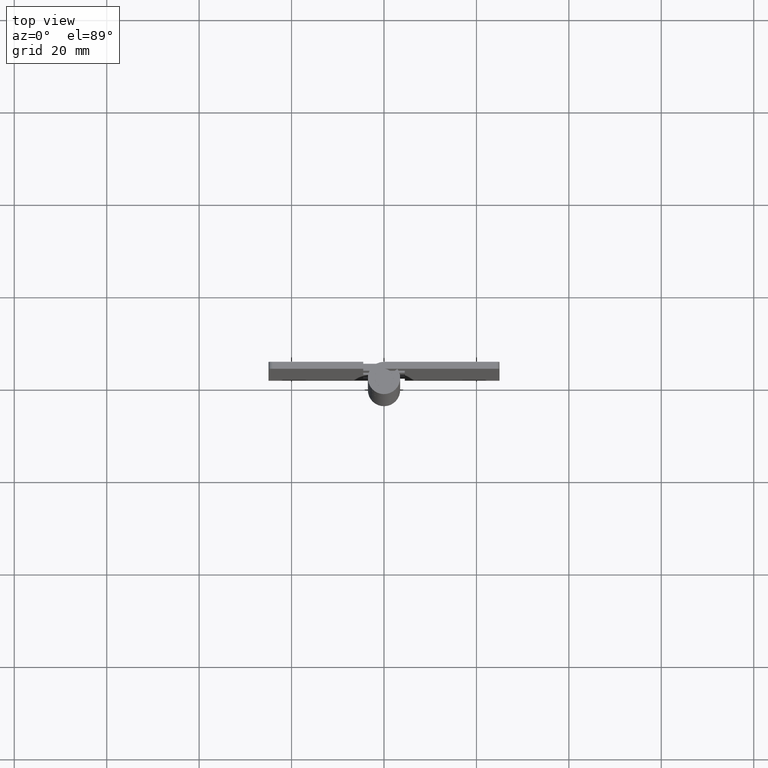
[diagram: clean part render]
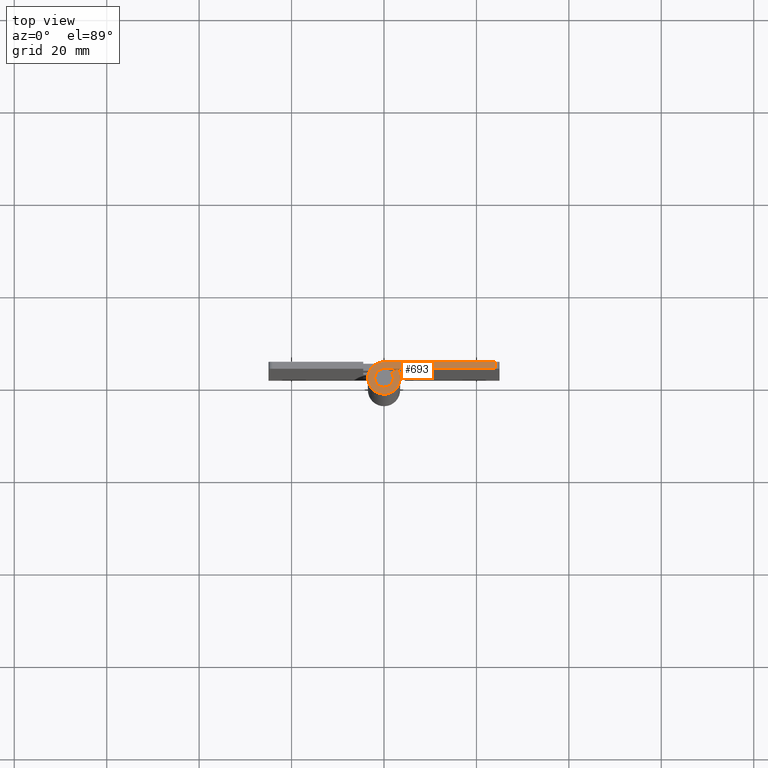
[diagram: same view with one face highlighted and labeled with its STEP entity id]
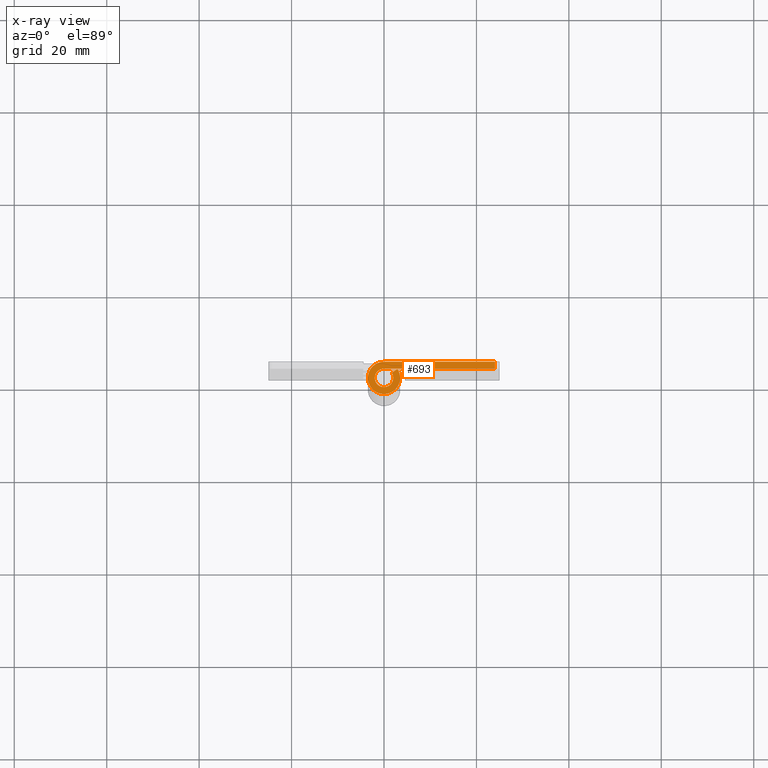
[diagram: x-ray of the same camera — body ghosted, the highlighted face saturated]
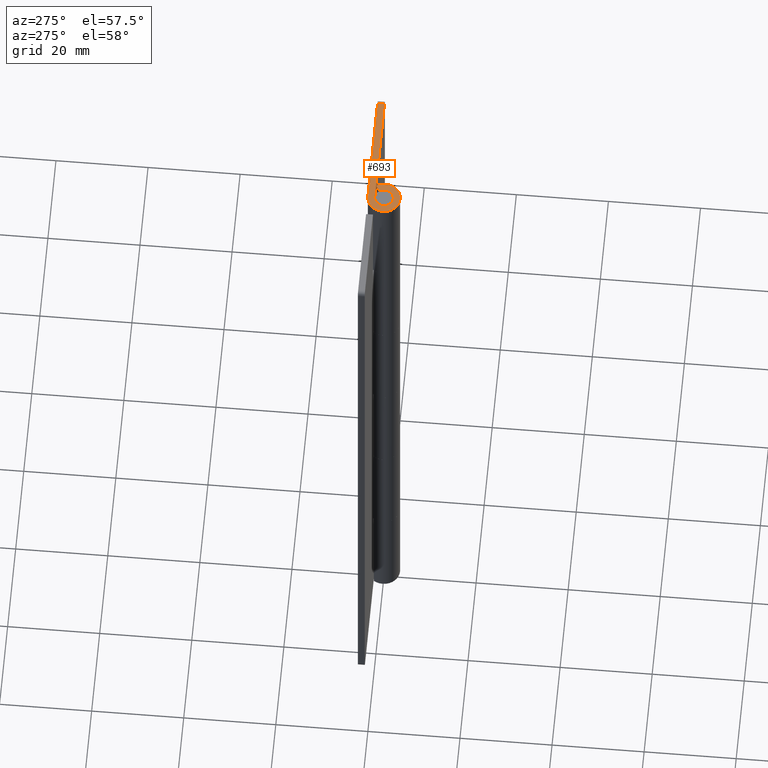
[diagram: same view with one face highlighted and labeled with its STEP entity id]
A machine part, top view. The second image highlights one B-rep face of the part: STEP entity #693.
The next image is the same camera in x-ray: the body ghosted, the highlighted face saturated — about 0% of this face is hidden behind the body in this view.
A second angle (auxiliary view) of the same face is appended — the face is thin or edge-on in the first view.
In plain terms, the highlighted face is a freeform B-spline surface patch.
Its self-contained STEP definition (entity closure, byte-faithful):
#60=CARTESIAN_POINT('',(24.0,2.0,150.000008000000010));
#61=VERTEX_POINT('',#60);
#82=CARTESIAN_POINT('',(24.0,3.500000000000000,150.000008000000010));
#83=VERTEX_POINT('',#82);
#97=CARTESIAN_POINT('',(24.0,2.0,150.000008000000010));
#98=CARTESIAN_POINT('',(24.0,3.500000000000000,150.000008000000010));
#99=QUASI_UNIFORM_CURVE('',1,(#97,#98),.UNSPECIFIED.,.F.,.U.);
#100=EDGE_CURVE('',#61,#83,#99,.T.);
#624=CARTESIAN_POINT('',(-4.872876216677774,3.849507296625907,150.000008000000010));
#625=CARTESIAN_POINT('',(25.373590064436399,3.849507296625907,150.000008000000010));
#626=CARTESIAN_POINT('',(-4.872876216677774,-3.846650831405569,150.000008000000010));
#627=CARTESIAN_POINT('',(25.373590064436399,-3.846650831405569,150.000008000000010));
#628=B_SPLINE_SURFACE_WITH_KNOTS('',1,1,((#624,#626),(#625,#627)),.UNSPECIFIED.,.F.,.F.,.U.,(2,2),(2,2),(0.0,30.246466281114170),(0.0,7.696158128031476),.UNSPECIFIED.);
#629=CARTESIAN_POINT('',(-2.449213E-016,2.0,150.000008000000010));
#630=VERTEX_POINT('',#629);
#631=CARTESIAN_POINT('',(-2.449213E-016,2.0,150.000008000000010));
#632=CARTESIAN_POINT('',(24.0,2.0,150.000008000000010));
#633=QUASI_UNIFORM_CURVE('',1,(#631,#632),.UNSPECIFIED.,.F.,.U.);
#634=EDGE_CURVE('',#630,#61,#633,.T.);
#635=ORIENTED_EDGE('',*,*,#634,.T.);
#636=ORIENTED_EDGE('',*,*,#100,.T.);
#637=CARTESIAN_POINT('',(0.0,3.500000000000000,150.000008000000010));
#638=VERTEX_POINT('',#637);
#639=CARTESIAN_POINT('',(24.0,3.500000000000000,150.000008000000010));
#640=CARTESIAN_POINT('',(0.0,3.500000000000000,150.000008000000010));
#641=QUASI_UNIFORM_CURVE('',1,(#639,#640),.UNSPECIFIED.,.F.,.U.);
#642=EDGE_CURVE('',#83,#638,#641,.T.);
#643=ORIENTED_EDGE('',*,*,#642,.T.);
#644=CARTESIAN_POINT('',(2.906458325866730,1.950000000000000,150.000008000000010));
#645=VERTEX_POINT('',#644);
#646=CARTESIAN_POINT('',(0.0,3.500000000000000,150.000008000000010));
#647=CARTESIAN_POINT('',(-2.732759340469791,3.500000000000001,150.000008000000040));
#648=CARTESIAN_POINT('',(-3.395511382448716,0.848824158269080,150.000008000000010));
#649=CARTESIAN_POINT('',(-4.058263424427640,-1.802351683461841,150.000008000000040));
#650=CARTESIAN_POINT('',(-1.646966909200063,-3.088284313336451,150.000008000000010));
#651=CARTESIAN_POINT('',(0.764329606027513,-4.374216943211058,150.000008000000040));
#652=CARTESIAN_POINT('',(2.596662639363702,-2.346772919848176,150.000008000000010));
#653=CARTESIAN_POINT('',(4.428995672699895,-0.319328896485289,150.000008000000040));
#654=CARTESIAN_POINT('',(2.906458325866727,1.949999999999996,150.000008000000010));
#662=(BOUNDED_CURVE()B_SPLINE_CURVE(2,(#646,#647,#648,#649,#650,#651,#652,#653,#654),.UNSPECIFIED.,.F.,.U.)B_SPLINE_CURVE_WITH_KNOTS((3,2,2,2,3),(0.0,0.250000000000000,0.500000000000000,0.750000000000000,1.0),.UNSPECIFIED.)CURVE()GEOMETRIC_REPRESENTATION_ITEM()RATIONAL_B_SPLINE_CURVE((1.0,0.788200858942973,1.0,0.788200858942973,1.0,0.788200858942973,1.0,0.788200858942973,1.0))REPRESENTATION_ITEM(''));
#663=EDGE_CURVE('',#638,#645,#662,.T.);
#664=ORIENTED_EDGE('',*,*,#663,.T.);
#665=CARTESIAN_POINT('',(1.660833329066705,1.114285714285708,150.000008000000010));
#666=VERTEX_POINT('',#665);
#667=CARTESIAN_POINT('',(2.906458325866730,1.950000000000000,150.000008000000010));
#668=CARTESIAN_POINT('',(1.660833329066705,1.114285714285708,150.000008000000010));
#669=QUASI_UNIFORM_CURVE('',1,(#667,#668),.UNSPECIFIED.,.F.,.U.);
#670=EDGE_CURVE('',#645,#666,#669,.T.);
#671=ORIENTED_EDGE('',*,*,#670,.T.);
#672=CARTESIAN_POINT('',(0.0,2.0,150.000008000000010));
#673=CARTESIAN_POINT('',(-1.561576765982737,2.000000000000000,150.000007999999950));
#674=CARTESIAN_POINT('',(-1.940292218542123,0.485042376153762,150.000008000000010));
#675=CARTESIAN_POINT('',(-2.319007671101510,-1.029915247692477,150.000007999999950));
#676=CARTESIAN_POINT('',(-0.941123948114325,-1.764733893335113,150.000008000000010));
#677=CARTESIAN_POINT('',(0.436759774872860,-2.499552538977749,150.000007999999950));
#678=CARTESIAN_POINT('',(1.483807222493542,-1.341013097056103,150.000008000000010));
#679=CARTESIAN_POINT('',(2.530854670114224,-0.182473655134458,150.000007999999950));
#680=CARTESIAN_POINT('',(1.660833329066705,1.114285714285706,150.000008000000010));
#688=(BOUNDED_CURVE()B_SPLINE_CURVE(2,(#672,#673,#674,#675,#676,#677,#678,#679,#680),.UNSPECIFIED.,.F.,.U.)B_SPLINE_CURVE_WITH_KNOTS((3,2,2,2,3),(0.0,0.250000000000000,0.500000000000000,0.750000000000000,1.0),.UNSPECIFIED.)CURVE()GEOMETRIC_REPRESENTATION_ITEM()RATIONAL_B_SPLINE_CURVE((1.0,0.788200858942973,1.0,0.788200858942973,1.0,0.788200858942973,1.0,0.788200858942973,1.0))REPRESENTATION_ITEM(''));
#689=EDGE_CURVE('',#630,#666,#688,.T.);
#690=ORIENTED_EDGE('',*,*,#689,.F.);
#691=EDGE_LOOP('',(#635,#636,#643,#664,#671,#690));
#692=FACE_OUTER_BOUND('',#691,.T.);
#693=ADVANCED_FACE('',(#692),#628,.F.);